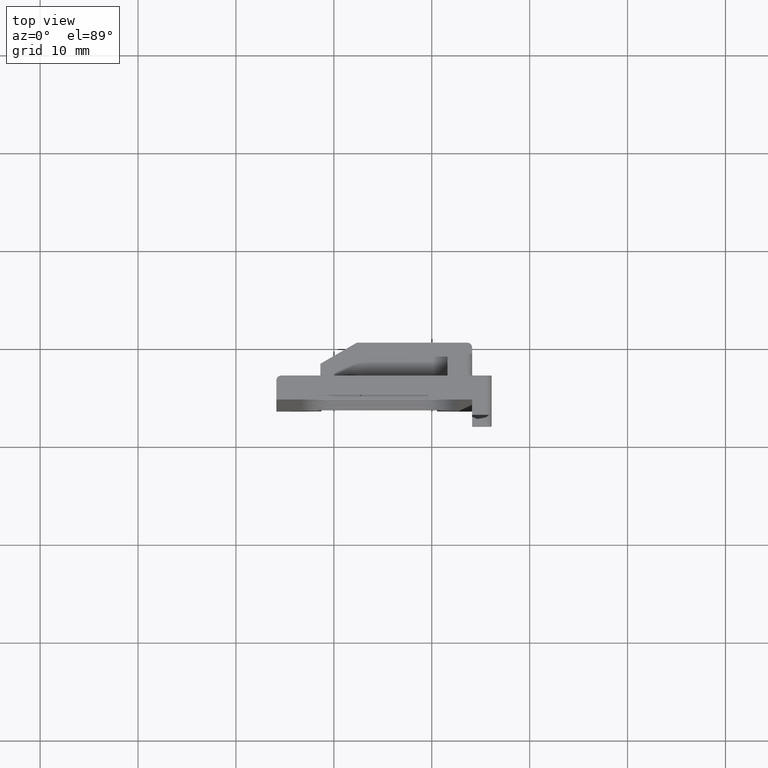
[diagram: clean part render]
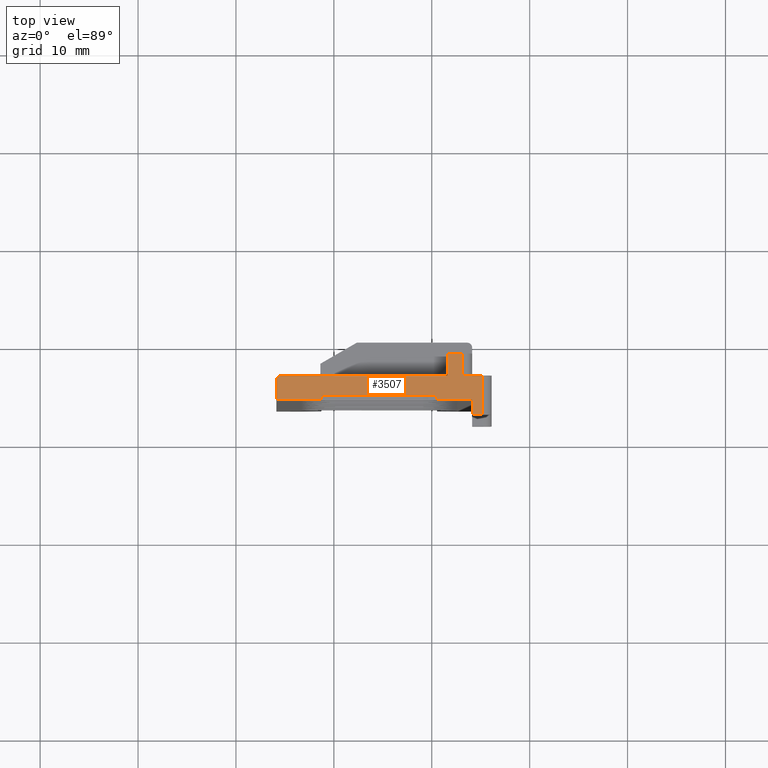
[diagram: same view with one face highlighted and labeled with its STEP entity id]
A machine part, top view. The second image highlights one B-rep face of the part: STEP entity #3507.
In plain terms, the highlighted planar face has unit normal (-0, 0, -1).
Its self-contained STEP definition (entity closure, byte-faithful):
#43 = VECTOR ( 'NONE', #8298, 1000.000000000000000 ) ;
#60 = VECTOR ( 'NONE', #8382, 1000.000000000000000 ) ;
#72 = VECTOR ( 'NONE', #8387, 1000.000000000000000 ) ;
#114 = VECTOR ( 'NONE', #3106, 1000.000000000000000 ) ;
#116 = CIRCLE ( 'NONE', #122, 0.5000000000000004400 ) ;
#122 = AXIS2_PLACEMENT_3D ( 'NONE', #8513, #8536, #8514 ) ;
#150 = VECTOR ( 'NONE', #8557, 1000.000000000000000 ) ;
#192 = VECTOR ( 'NONE', #8650, 1000.000000000000000 ) ;
#206 = VECTOR ( 'NONE', #8605, 1000.000000000000000 ) ;
#210 = VECTOR ( 'NONE', #8572, 1000.000000000000000 ) ;
#216 = VECTOR ( 'NONE', #8617, 1000.000000000000000 ) ;
#244 = VECTOR ( 'NONE', #2986, 1000.000000000000000 ) ;
#253 = VECTOR ( 'NONE', #8749, 1000.000000000000000 ) ;
#257 = VECTOR ( 'NONE', #8774, 1000.000000000000000 ) ;
#464 = AXIS2_PLACEMENT_3D ( 'NONE', #4572, #4548, #4584 ) ;
#517 = VECTOR ( 'NONE', #3107, 1000.000000000000000 ) ;
#813 = VECTOR ( 'NONE', #3049, 1000.000000000000000 ) ;
#963 = VERTEX_POINT ( 'NONE', #6812 ) ;
#968 = VERTEX_POINT ( 'NONE', #6826 ) ;
#994 = VERTEX_POINT ( 'NONE', #6837 ) ;
#1007 = VERTEX_POINT ( 'NONE', #6803 ) ;
#1019 = VERTEX_POINT ( 'NONE', #6822 ) ;
#1024 = VERTEX_POINT ( 'NONE', #6823 ) ;
#1029 = VERTEX_POINT ( 'NONE', #6842 ) ;
#1045 = VERTEX_POINT ( 'NONE', #6875 ) ;
#1051 = VERTEX_POINT ( 'NONE', #6871 ) ;
#1077 = VERTEX_POINT ( 'NONE', #6870 ) ;
#1094 = VERTEX_POINT ( 'NONE', #6894 ) ;
#1107 = VERTEX_POINT ( 'NONE', #6863 ) ;
#1109 = VERTEX_POINT ( 'NONE', #6862 ) ;
#1140 = VERTEX_POINT ( 'NONE', #6912 ) ;
#1213 = VERTEX_POINT ( 'NONE', #6976 ) ;
#1306 = ORIENTED_EDGE ( 'NONE', *, *, #3941, .F. ) ;
#1325 = ORIENTED_EDGE ( 'NONE', *, *, #3835, .T. ) ;
#1362 = ORIENTED_EDGE ( 'NONE', *, *, #3932, .F. ) ;
#1365 = ORIENTED_EDGE ( 'NONE', *, *, #3953, .T. ) ;
#1392 = ORIENTED_EDGE ( 'NONE', *, *, #3908, .F. ) ;
#1403 = ORIENTED_EDGE ( 'NONE', *, *, #3984, .F. ) ;
#1411 = ORIENTED_EDGE ( 'NONE', *, *, #3862, .F. ) ;
#1417 = ORIENTED_EDGE ( 'NONE', *, *, #3925, .F. ) ;
#1418 = ORIENTED_EDGE ( 'NONE', *, *, #4032, .F. ) ;
#1428 = ORIENTED_EDGE ( 'NONE', *, *, #4016, .F. ) ;
#1450 = ORIENTED_EDGE ( 'NONE', *, *, #4033, .F. ) ;
#1451 = ORIENTED_EDGE ( 'NONE', *, *, #4009, .F. ) ;
#1467 = ORIENTED_EDGE ( 'NONE', *, *, #3868, .F. ) ;
#1471 = ORIENTED_EDGE ( 'NONE', *, *, #3951, .F. ) ;
#1479 = ORIENTED_EDGE ( 'NONE', *, *, #3990, .F. ) ;
#2986 = DIRECTION ( 'NONE',  ( -1.000000000000000000, -2.530253133731424900E-033, -6.916643862731900400E-053 ) ) ;
#2999 = LINE ( 'NONE', #3026, #244 ) ;
#3026 = CARTESIAN_POINT ( 'NONE',  ( 464.8752094327940100, 143.6378730676889900, 71.59999999999841700 ) ) ;
#3039 = LINE ( 'NONE', #3061, #813 ) ;
#3049 = DIRECTION ( 'NONE',  ( 9.546107180843072800E-035, 1.000000000000000000, 2.733577826868160200E-020 ) ) ;
#3061 = CARTESIAN_POINT ( 'NONE',  ( 460.5429541206701200, 142.0878730676890000, 71.59999999999843100 ) ) ;
#3078 = LINE ( 'NONE', #3114, #114 ) ;
#3105 = LINE ( 'NONE', #3113, #517 ) ;
#3106 = DIRECTION ( 'NONE',  ( -1.000000000000000000, -2.530253133731424900E-033, -6.916643862731900400E-053 ) ) ;
#3107 = DIRECTION ( 'NONE',  ( -9.546107180843072800E-035, -1.000000000000000000, -2.733577826868160200E-020 ) ) ;
#3113 = CARTESIAN_POINT ( 'NONE',  ( 448.7074647449180100, 142.0878730676890000, 71.59999999999847400 ) ) ;
#3114 = CARTESIAN_POINT ( 'NONE',  ( 464.8752094327940100, 143.6378730676889900, 71.59999999999847400 ) ) ;
#3507 = ADVANCED_FACE ( 'NONE', ( #4559 ), #4589, .F. ) ;
#3835 = EDGE_CURVE ( 'NONE', #1024, #1007, #8286, .T. ) ;
#3862 = EDGE_CURVE ( 'NONE', #1024, #1051, #8400, .T. ) ;
#3868 = EDGE_CURVE ( 'NONE', #968, #1019, #8380, .T. ) ;
#3908 = EDGE_CURVE ( 'NONE', #994, #1109, #116, .T. ) ;
#3925 = EDGE_CURVE ( 'NONE', #963, #1007, #8568, .T. ) ;
#3932 = EDGE_CURVE ( 'NONE', #1051, #1029, #8590, .T. ) ;
#3941 = EDGE_CURVE ( 'NONE', #1109, #963, #8612, .T. ) ;
#3951 = EDGE_CURVE ( 'NONE', #1029, #1045, #8646, .T. ) ;
#3953 = EDGE_CURVE ( 'NONE', #1107, #1045, #8671, .T. ) ;
#3984 = EDGE_CURVE ( 'NONE', #1140, #994, #8738, .T. ) ;
#3990 = EDGE_CURVE ( 'NONE', #1107, #1077, #8747, .T. ) ;
#4009 = EDGE_CURVE ( 'NONE', #1077, #1213, #2999, .T. ) ;
#4016 = EDGE_CURVE ( 'NONE', #1213, #968, #3039, .T. ) ;
#4032 = EDGE_CURVE ( 'NONE', #1094, #1140, #3078, .T. ) ;
#4033 = EDGE_CURVE ( 'NONE', #1019, #1094, #3105, .T. ) ;
#4548 = DIRECTION ( 'NONE',  ( -3.492165866658340700E-015, 2.733577826868160200E-020, -1.000000000000000000 ) ) ;
#4559 = FACE_OUTER_BOUND ( 'NONE', #6556, .T. ) ;
#4572 = CARTESIAN_POINT ( 'NONE',  ( 465.1252094327940100, 142.0878730676890000, 71.59999999999841700 ) ) ;
#4584 = DIRECTION ( 'NONE',  ( -1.000000000000000000, 0.0000000000000000000, 3.492165866658340700E-015 ) ) ;
#4589 = PLANE ( 'NONE',  #464 ) ;
#6556 = EDGE_LOOP ( 'NONE', ( #1365, #1471, #1362, #1411, #1325, #1417, #1306, #1392, #1403, #1418, #1450, #1467, #1428, #1451, #1479 ) ) ;
#6803 = CARTESIAN_POINT ( 'NONE',  ( 461.6252094327940100, 148.3378730676890000, 71.59999999999851600 ) ) ;
#6812 = CARTESIAN_POINT ( 'NONE',  ( 461.6252094327940100, 146.0878730676890000, 71.59999999999844500 ) ) ;
#6822 = CARTESIAN_POINT ( 'NONE',  ( 448.7074647449180100, 144.0878730676890000, 71.59999999999847400 ) ) ;
#6823 = CARTESIAN_POINT ( 'NONE',  ( 463.1252094327937800, 148.3378730676890000, 71.59999999999841700 ) ) ;
#6826 = CARTESIAN_POINT ( 'NONE',  ( 460.5429541206701200, 144.0878730676890000, 71.59999999999843100 ) ) ;
#6837 = CARTESIAN_POINT ( 'NONE',  ( 444.1252094327941200, 145.5878730676890000, 71.59999999999847400 ) ) ;
#6842 = CARTESIAN_POINT ( 'NONE',  ( 465.1252094327940100, 146.0878730676890000, 71.59999999999841700 ) ) ;
#6862 = CARTESIAN_POINT ( 'NONE',  ( 444.6252094327941800, 146.0878730676890000, 71.59999999999847400 ) ) ;
#6863 = CARTESIAN_POINT ( 'NONE',  ( 464.1252094327940700, 142.0878730676890000, 71.59999999999841700 ) ) ;
#6870 = CARTESIAN_POINT ( 'NONE',  ( 464.1252094327940700, 143.6378730676889900, 71.59999999999841700 ) ) ;
#6871 = CARTESIAN_POINT ( 'NONE',  ( 463.1252094327937800, 146.0878730676890000, 71.59999999999841700 ) ) ;
#6875 = CARTESIAN_POINT ( 'NONE',  ( 465.1252094327940100, 142.0878730676890000, 71.59999999999841700 ) ) ;
#6894 = CARTESIAN_POINT ( 'NONE',  ( 448.7074647449178400, 143.6378730676889900, 71.59999999999847400 ) ) ;
#6912 = CARTESIAN_POINT ( 'NONE',  ( 444.1252094327941800, 143.6378730676889900, 71.59999999999847400 ) ) ;
#6976 = CARTESIAN_POINT ( 'NONE',  ( 460.5429541206701200, 143.6378730676889900, 71.59999999999841700 ) ) ;
#8276 = CARTESIAN_POINT ( 'NONE',  ( 459.1252094327940100, 148.3378730676890000, 71.59999999999841700 ) ) ;
#8286 = LINE ( 'NONE', #8276, #43 ) ;
#8298 = DIRECTION ( 'NONE',  ( -1.000000000000000000, -2.530253133731424900E-033, 6.916643862731900400E-053 ) ) ;
#8370 = CARTESIAN_POINT ( 'NONE',  ( 465.1252094327940100, 144.0878730676890000, 71.59999999999841700 ) ) ;
#8380 = LINE ( 'NONE', #8370, #60 ) ;
#8382 = DIRECTION ( 'NONE',  ( -1.000000000000000000, 0.0000000000000000000, 3.492165866658340700E-015 ) ) ;
#8387 = DIRECTION ( 'NONE',  ( -9.546107180843072800E-035, -1.000000000000000000, -2.733577826868160200E-020 ) ) ;
#8393 = CARTESIAN_POINT ( 'NONE',  ( 463.1252094327937800, 142.0878730676890000, 71.59999999999843100 ) ) ;
#8400 = LINE ( 'NONE', #8393, #72 ) ;
#8513 = CARTESIAN_POINT ( 'NONE',  ( 444.6252094327941800, 145.5878730676890000, 71.59999999999847400 ) ) ;
#8514 = DIRECTION ( 'NONE',  ( 1.000000000000000000, 0.0000000000000000000, 0.0000000000000000000 ) ) ;
#8536 = DIRECTION ( 'NONE',  ( -3.492165866658340300E-015, 2.733577826868160200E-020, -1.000000000000000000 ) ) ;
#8557 = DIRECTION ( 'NONE',  ( 9.546107180843072800E-035, 1.000000000000000000, 2.733577826868160200E-020 ) ) ;
#8568 = LINE ( 'NONE', #8587, #150 ) ;
#8572 = DIRECTION ( 'NONE',  ( 1.000000000000000000, -0.0000000000000000000, -3.492165866658340700E-015 ) ) ;
#8578 = CARTESIAN_POINT ( 'NONE',  ( 465.1252094327940100, 146.0878730676890000, 71.59999999999841700 ) ) ;
#8587 = CARTESIAN_POINT ( 'NONE',  ( 461.6252094327940100, 142.0878730676890000, 71.59999999999843100 ) ) ;
#8590 = LINE ( 'NONE', #8578, #210 ) ;
#8602 = CARTESIAN_POINT ( 'NONE',  ( 465.1252094327940100, 146.0878730676890000, 71.59999999999841700 ) ) ;
#8605 = DIRECTION ( 'NONE',  ( 1.000000000000000000, -0.0000000000000000000, -3.492165866658340700E-015 ) ) ;
#8612 = LINE ( 'NONE', #8602, #206 ) ;
#8616 = CARTESIAN_POINT ( 'NONE',  ( 465.1252094327940100, 142.0878730676890000, 71.59999999999841700 ) ) ;
#8617 = DIRECTION ( 'NONE',  ( -9.546107180843072800E-035, -1.000000000000000000, -2.733577826868160200E-020 ) ) ;
#8646 = LINE ( 'NONE', #8616, #216 ) ;
#8650 = DIRECTION ( 'NONE',  ( 1.000000000000000000, 2.530253133731424900E-033, 6.916643862731900400E-053 ) ) ;
#8671 = LINE ( 'NONE', #8682, #192 ) ;
#8682 = CARTESIAN_POINT ( 'NONE',  ( 465.1252094327940100, 142.0878730676890000, 71.59999999999841700 ) ) ;
#8737 = CARTESIAN_POINT ( 'NONE',  ( 464.1252094327940700, 142.0878730676890000, 71.59999999999841700 ) ) ;
#8738 = LINE ( 'NONE', #8773, #257 ) ;
#8747 = LINE ( 'NONE', #8737, #253 ) ;
#8749 = DIRECTION ( 'NONE',  ( 9.546107180843072800E-035, 1.000000000000000000, 2.733577826868160200E-020 ) ) ;
#8773 = CARTESIAN_POINT ( 'NONE',  ( 444.1252094327942400, 142.0878730676890000, 71.59999999999848800 ) ) ;
#8774 = DIRECTION ( 'NONE',  ( 9.546107180843072800E-035, 1.000000000000000000, 2.733577826868160200E-020 ) ) ;